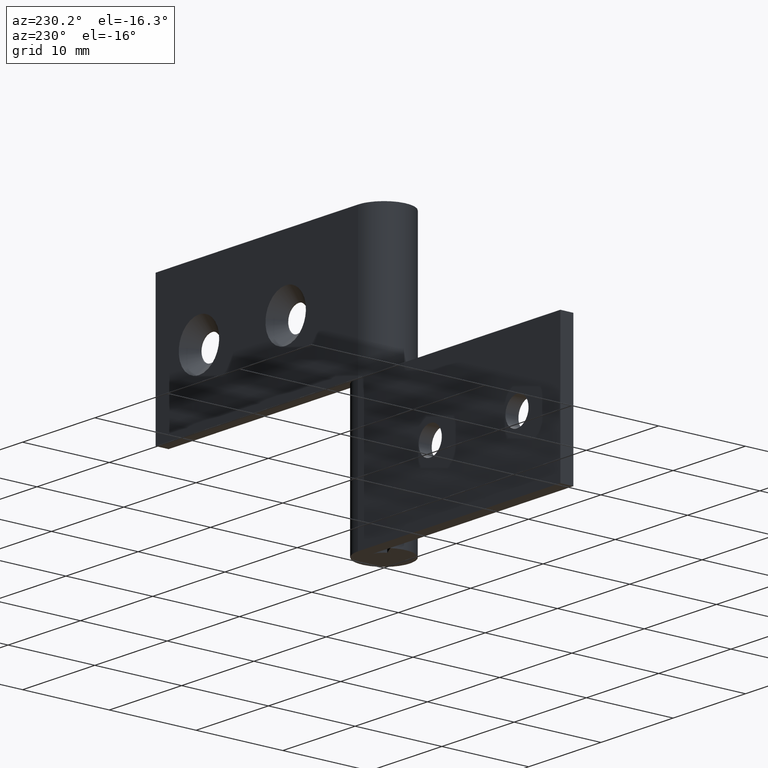
[diagram: clean part render]
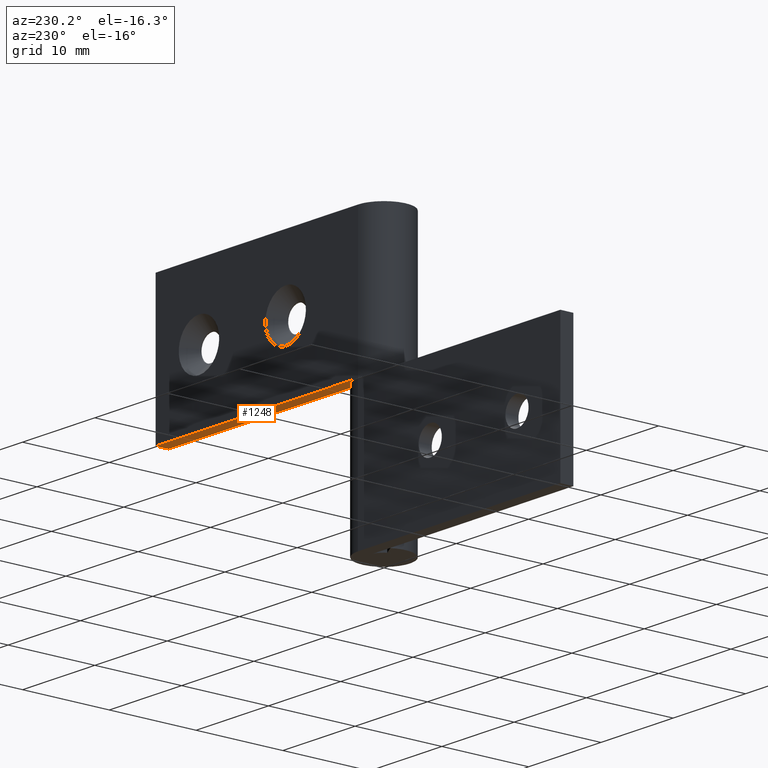
[diagram: same view with one face highlighted and labeled with its STEP entity id]
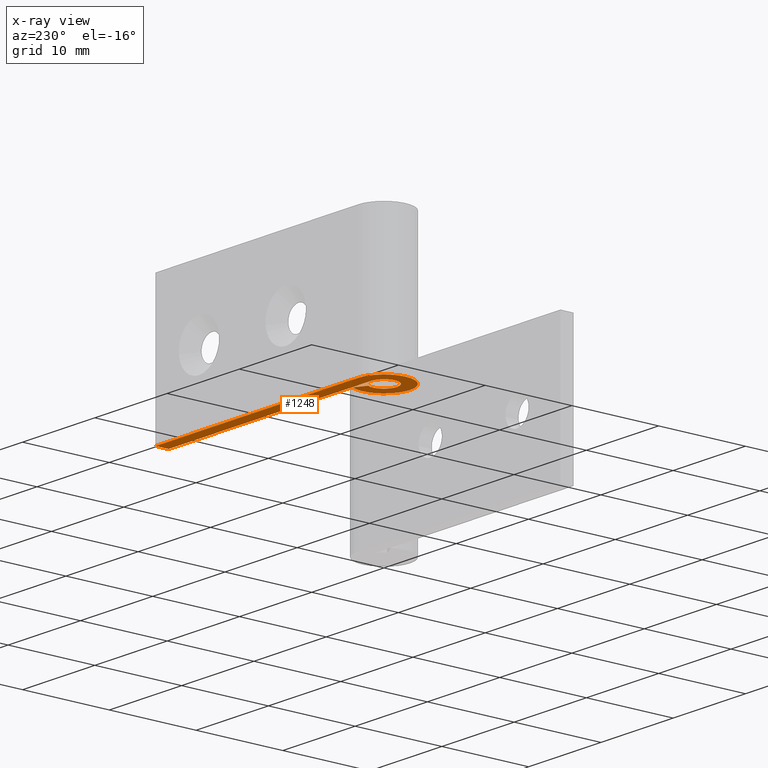
[diagram: x-ray of the same camera — body ghosted, the highlighted face saturated]
A machine part, auxiliary view. The second image highlights one B-rep face of the part: STEP entity #1248.
The next image is the same camera in x-ray: the body ghosted, the highlighted face saturated — about 11% of this face is hidden behind the body in this view.
In plain terms, the highlighted face is a freeform B-spline surface patch.
Its self-contained STEP definition (entity closure, byte-faithful):
#1171=CARTESIAN_POINT('',(-4.548398161596569,-3.299492257854450,16.0));
#1172=CARTESIAN_POINT('',(29.548454365928890,-3.299492257854450,16.0));
#1173=CARTESIAN_POINT('',(-4.548398161596569,3.299690266790416,16.0));
#1174=CARTESIAN_POINT('',(29.548454365928890,3.299690266790416,16.0));
#1175=B_SPLINE_SURFACE_WITH_KNOTS('',1,1,((#1171,#1173),(#1172,#1174)),.UNSPECIFIED.,.F.,.F.,.U.,(2,2),(2,2),(0.0,34.096852527525463),(0.0,6.599182524644866),.UNSPECIFIED.);
#1176=CARTESIAN_POINT('',(1.313154598666890,0.725000000000000,16.0));
#1177=VERTEX_POINT('',#1176);
#1178=CARTESIAN_POINT('',(0.0,1.500000000000000,16.0));
#1179=VERTEX_POINT('',#1178);
#1180=CARTESIAN_POINT('',(1.313154598666890,0.725000000000000,16.0));
#1181=CARTESIAN_POINT('',(1.866715792252885,-0.277636451035838,15.999999999999995));
#1182=CARTESIAN_POINT('',(1.045325295443045,-1.075776476182162,16.0));
#1183=CARTESIAN_POINT('',(0.223934798633207,-1.873916501328486,15.999999999999995));
#1184=CARTESIAN_POINT('',(-0.762397534098844,-1.291801068276382,16.0));
#1185=CARTESIAN_POINT('',(-1.748729866830896,-0.709685635224277,15.999999999999995));
#1186=CARTESIAN_POINT('',(-1.447014444021651,0.395157182387861,16.0));
#1187=CARTESIAN_POINT('',(-1.145299021212405,1.500000000000000,15.999999999999995));
#1188=CARTESIAN_POINT('',(0.0,1.500000000000000,16.0));
#1196=(BOUNDED_CURVE()B_SPLINE_CURVE(2,(#1180,#1181,#1182,#1183,#1184,#1185,#1186,#1187,#1188),.UNSPECIFIED.,.F.,.U.)B_SPLINE_CURVE_WITH_KNOTS((3,2,2,2,3),(0.0,0.250000000000000,0.500000000000000,0.750000000000000,1.0),.UNSPECIFIED.)CURVE()GEOMETRIC_REPRESENTATION_ITEM()RATIONAL_B_SPLINE_CURVE((1.0,0.794807562115481,1.0,0.794807562115481,1.0,0.794807562115481,1.0,0.794807562115481,1.0))REPRESENTATION_ITEM(''));
#1197=EDGE_CURVE('',#1177,#1179,#1196,.T.);
#1198=ORIENTED_EDGE('',*,*,#1197,.F.);
#1199=CARTESIAN_POINT('',(2.626309197333775,1.450000000000000,16.0));
#1200=VERTEX_POINT('',#1199);
#1201=CARTESIAN_POINT('',(2.626309197333775,1.450000000000000,16.0));
#1202=CARTESIAN_POINT('',(1.313154598666890,0.725000000000000,16.0));
#1203=QUASI_UNIFORM_CURVE('',1,(#1201,#1202),.UNSPECIFIED.,.F.,.U.);
#1204=EDGE_CURVE('',#1200,#1177,#1203,.T.);
#1205=ORIENTED_EDGE('',*,*,#1204,.F.);
#1206=CARTESIAN_POINT('',(3.552714E-015,3.0,16.0));
#1207=VERTEX_POINT('',#1206);
#1208=CARTESIAN_POINT('',(2.626309197333778,1.450000000000002,16.0));
#1209=CARTESIAN_POINT('',(3.733431584505770,-0.555272902071671,15.999999999999998));
#1210=CARTESIAN_POINT('',(2.090650590886093,-2.151552952364322,16.0));
#1211=CARTESIAN_POINT('',(0.447869597266412,-3.747833002656976,15.999999999999998));
#1212=CARTESIAN_POINT('',(-1.524795068197694,-2.583602136552761,16.0));
#1213=CARTESIAN_POINT('',(-3.497459733661796,-1.419371270448548,15.999999999999998));
#1214=CARTESIAN_POINT('',(-2.894028888043300,0.790314364775728,16.0));
#1215=CARTESIAN_POINT('',(-2.290598042424805,3.0,15.999999999999998));
#1216=CARTESIAN_POINT('',(0.0,3.0,16.0));
#1224=(BOUNDED_CURVE()B_SPLINE_CURVE(2,(#1208,#1209,#1210,#1211,#1212,#1213,#1214,#1215,#1216),.UNSPECIFIED.,.F.,.U.)B_SPLINE_CURVE_WITH_KNOTS((3,2,2,2,3),(0.0,0.250000000000000,0.500000000000000,0.750000000000000,1.0),.UNSPECIFIED.)CURVE()GEOMETRIC_REPRESENTATION_ITEM()RATIONAL_B_SPLINE_CURVE((1.0,0.794807562115481,1.0,0.794807562115481,1.0,0.794807562115481,1.0,0.794807562115481,1.0))REPRESENTATION_ITEM(''));
#1225=EDGE_CURVE('',#1200,#1207,#1224,.T.);
#1226=ORIENTED_EDGE('',*,*,#1225,.T.);
#1227=CARTESIAN_POINT('',(28.000008000000001,3.0,16.0));
#1228=VERTEX_POINT('',#1227);
#1229=CARTESIAN_POINT('',(28.000008000000001,3.0,16.0));
#1230=CARTESIAN_POINT('',(3.552714E-015,3.0,16.0));
#1231=QUASI_UNIFORM_CURVE('',1,(#1229,#1230),.UNSPECIFIED.,.F.,.U.);
#1232=EDGE_CURVE('',#1228,#1207,#1231,.T.);
#1233=ORIENTED_EDGE('',*,*,#1232,.F.);
#1234=CARTESIAN_POINT('',(28.000008000000001,1.500000000000000,16.0));
#1235=VERTEX_POINT('',#1234);
#1236=CARTESIAN_POINT('',(28.000008000000001,1.500000000000000,16.0));
#1237=CARTESIAN_POINT('',(28.000008000000001,3.0,16.0));
#1238=QUASI_UNIFORM_CURVE('',1,(#1236,#1237),.UNSPECIFIED.,.F.,.U.);
#1239=EDGE_CURVE('',#1235,#1228,#1238,.T.);
#1240=ORIENTED_EDGE('',*,*,#1239,.F.);
#1241=CARTESIAN_POINT('',(0.0,1.500000000000000,16.0));
#1242=CARTESIAN_POINT('',(28.000008000000001,1.500000000000000,16.0));
#1243=QUASI_UNIFORM_CURVE('',1,(#1241,#1242),.UNSPECIFIED.,.F.,.U.);
#1244=EDGE_CURVE('',#1179,#1235,#1243,.T.);
#1245=ORIENTED_EDGE('',*,*,#1244,.F.);
#1246=EDGE_LOOP('',(#1198,#1205,#1226,#1233,#1240,#1245));
#1247=FACE_OUTER_BOUND('',#1246,.T.);
#1248=ADVANCED_FACE('',(#1247),#1175,.F.);